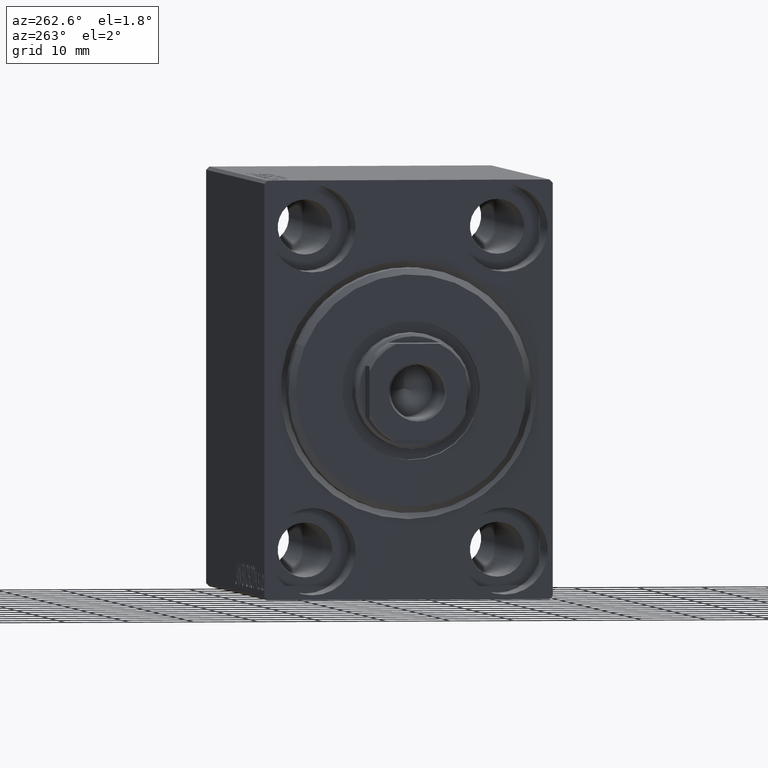
[diagram: clean part render]
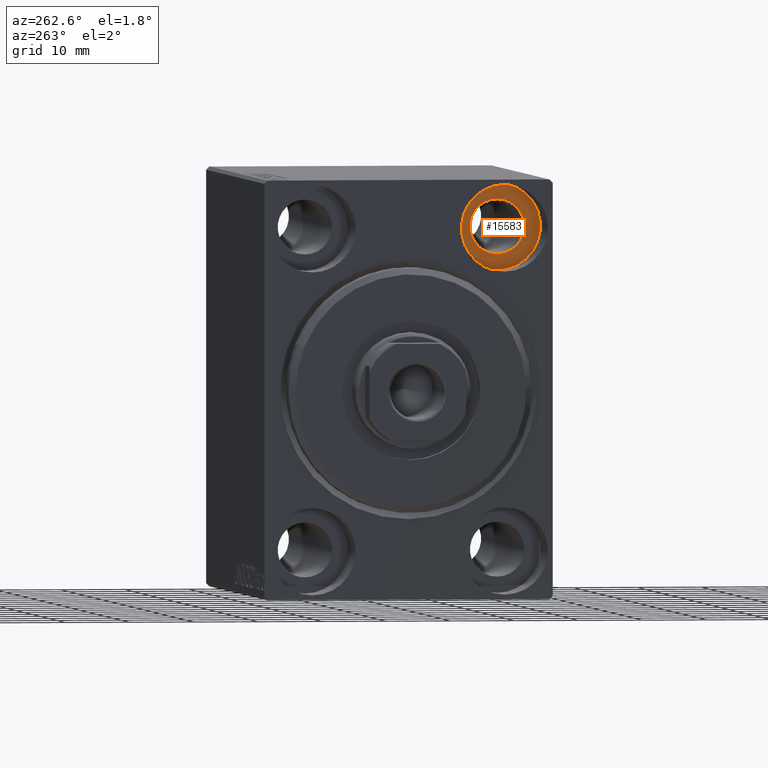
[diagram: same view with one face highlighted and labeled with its STEP entity id]
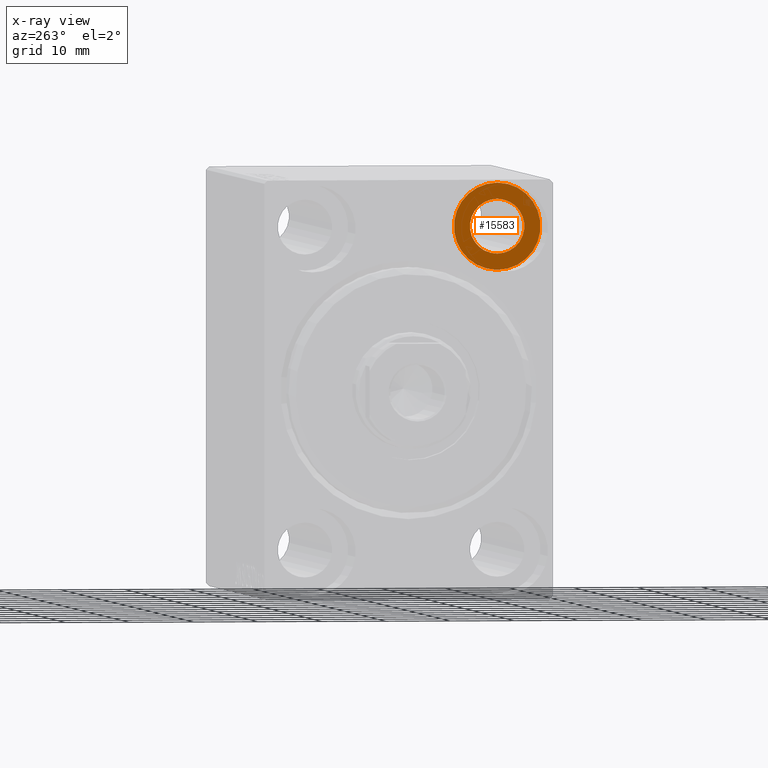
[diagram: x-ray of the same camera — body ghosted, the highlighted face saturated]
A machine part, auxiliary view. The second image highlights one B-rep face of the part: STEP entity #15583.
The next image is the same camera in x-ray: the body ghosted, the highlighted face saturated — about 0% of this face is hidden behind the body in this view.
In plain terms, the highlighted planar face has unit normal (-1, 0, 0).
Its self-contained STEP definition (entity closure, byte-faithful):
#2809 = AXIS2_PLACEMENT_3D ( 'NONE', #13321, #26877, #40443 ) ;
#3520 = CIRCLE ( 'NONE', #2809, 6.749999999999999112 ) ;
#3766 = DIRECTION ( 'NONE',  ( 0.000000000000000000, 0.000000000000000000, 1.000000000000000000 ) ) ;
#5050 = VERTEX_POINT ( 'NONE', #33082 ) ;
#5464 = CARTESIAN_POINT ( 'NONE',  ( 9.000000000000000000, -14.99999999999999645, 18.25000000000000355 ) ) ;
#5721 = ORIENTED_EDGE ( 'NONE', *, *, #16344, .T. ) ;
#7473 = CARTESIAN_POINT ( 'NONE',  ( 9.000000000000001776, -14.99999999999999645, 20.75000000000000355 ) ) ;
#9640 = EDGE_LOOP ( 'NONE', ( #5721, #32438 ) ) ;
#9746 = CARTESIAN_POINT ( 'NONE',  ( 9.000000000000001776, -14.99999999999999645, 29.25000000000000000 ) ) ;
#9766 = AXIS2_PLACEMENT_3D ( 'NONE', #25059, #30686, #3766 ) ;
#11737 = EDGE_LOOP ( 'NONE', ( #41103, #37208 ) ) ;
#11990 = FACE_BOUND ( 'NONE', #11737, .T. ) ;
#12876 = FACE_OUTER_BOUND ( 'NONE', #9640, .T. ) ;
#13321 = CARTESIAN_POINT ( 'NONE',  ( 9.000000000000000000, -14.99999999999999645, 25.00000000000000000 ) ) ;
#14435 = DIRECTION ( 'NONE',  ( -1.000000000000000000, 0.000000000000000000, 0.000000000000000000 ) ) ;
#14714 = CIRCLE ( 'NONE', #14930, 4.249999999999996447 ) ;
#14930 = AXIS2_PLACEMENT_3D ( 'NONE', #22848, #36214, #15303 ) ;
#15303 = DIRECTION ( 'NONE',  ( 0.000000000000000000, 0.000000000000000000, 1.000000000000000000 ) ) ;
#15549 = EDGE_CURVE ( 'NONE', #29330, #26708, #26193, .T. ) ;
#15583 = ADVANCED_FACE ( 'NONE', ( #11990, #12876 ), #25992, .T. ) ;
#16344 = EDGE_CURVE ( 'NONE', #5050, #38741, #28939, .T. ) ;
#21105 = CARTESIAN_POINT ( 'NONE',  ( 9.000000000000001776, -14.99999999999999645, 25.00000000000000000 ) ) ;
#22848 = CARTESIAN_POINT ( 'NONE',  ( 9.000000000000001776, -14.99999999999999645, 25.00000000000000000 ) ) ;
#23013 = EDGE_CURVE ( 'NONE', #38741, #5050, #3520, .T. ) ;
#24193 = EDGE_CURVE ( 'NONE', #26708, #29330, #14714, .T. ) ;
#25059 = CARTESIAN_POINT ( 'NONE',  ( 9.000000000000000000, -14.99999999999999645, 25.00000000000000000 ) ) ;
#25773 = DIRECTION ( 'NONE',  ( -1.000000000000000000, 0.000000000000000000, 0.000000000000000000 ) ) ;
#25992 = PLANE ( 'NONE',  #38231 ) ;
#26193 = CIRCLE ( 'NONE', #39591, 4.249999999999996447 ) ;
#26431 = DIRECTION ( 'NONE',  ( 0.000000000000000000, 0.000000000000000000, 1.000000000000000000 ) ) ;
#26708 = VERTEX_POINT ( 'NONE', #7473 ) ;
#26877 = DIRECTION ( 'NONE',  ( -1.000000000000000000, 0.000000000000000000, 0.000000000000000000 ) ) ;
#27986 = DIRECTION ( 'NONE',  ( 0.000000000000000000, 0.000000000000000000, 1.000000000000000000 ) ) ;
#28939 = CIRCLE ( 'NONE', #9766, 6.749999999999999112 ) ;
#29330 = VERTEX_POINT ( 'NONE', #9746 ) ;
#30686 = DIRECTION ( 'NONE',  ( -1.000000000000000000, 0.000000000000000000, 0.000000000000000000 ) ) ;
#32438 = ORIENTED_EDGE ( 'NONE', *, *, #23013, .T. ) ;
#33082 = CARTESIAN_POINT ( 'NONE',  ( 9.000000000000000000, -14.99999999999999645, 31.75000000000000000 ) ) ;
#36214 = DIRECTION ( 'NONE',  ( -1.000000000000000000, 0.000000000000000000, 0.000000000000000000 ) ) ;
#37208 = ORIENTED_EDGE ( 'NONE', *, *, #24193, .F. ) ;
#38231 = AXIS2_PLACEMENT_3D ( 'NONE', #43337, #25773, #26431 ) ;
#38741 = VERTEX_POINT ( 'NONE', #5464 ) ;
#39591 = AXIS2_PLACEMENT_3D ( 'NONE', #21105, #14435, #27986 ) ;
#40443 = DIRECTION ( 'NONE',  ( 0.000000000000000000, 0.000000000000000000, 1.000000000000000000 ) ) ;
#41103 = ORIENTED_EDGE ( 'NONE', *, *, #15549, .F. ) ;
#43337 = CARTESIAN_POINT ( 'NONE',  ( 9.000000000000000000, 0.000000000000000000, 0.000000000000000000 ) ) ;